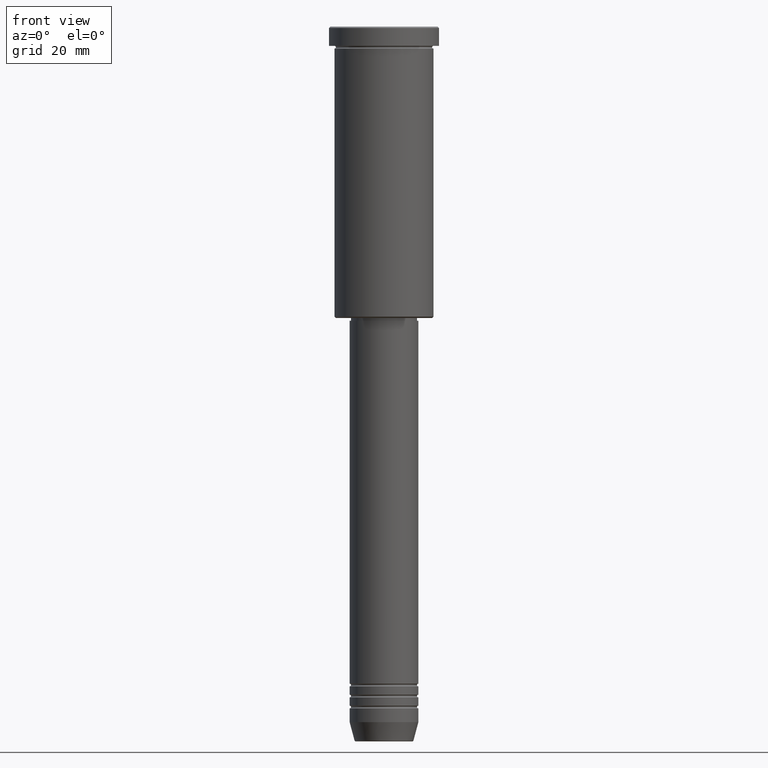
[diagram: clean part render]
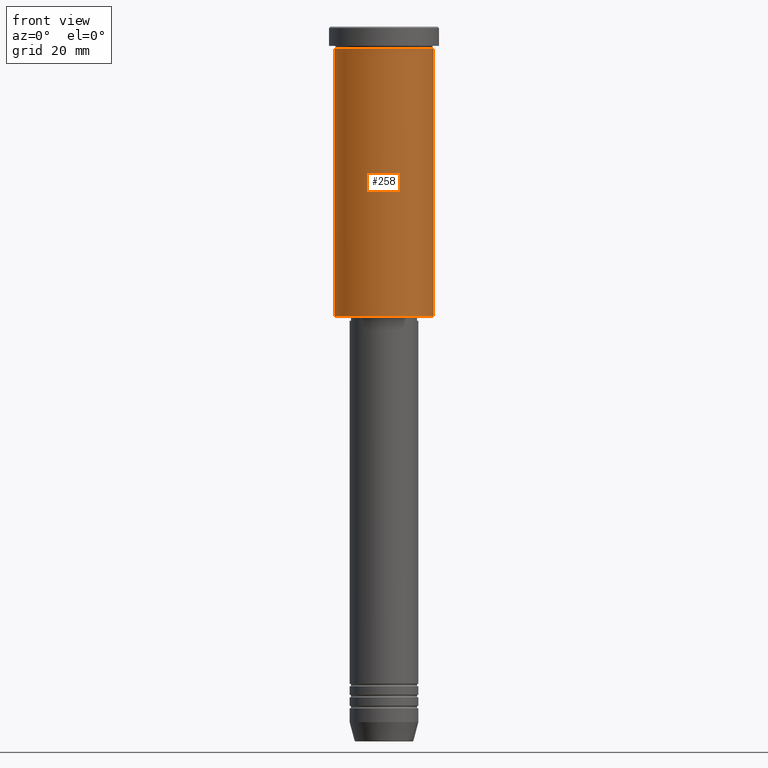
[diagram: same view with one face highlighted and labeled with its STEP entity id]
A machine part, front view. The second image highlights one B-rep face of the part: STEP entity #258.
In plain terms, the highlighted cylindrical surface (partial cylindrical patch) has radius 18 mm, axis along (-0, -0, 1).
Its self-contained STEP definition (entity closure, byte-faithful):
#102 = CARTESIAN_POINT ( 'NONE',  ( 0.000000000000000000, 0.000000000000000000, -7.999999999999996447 ) ) ;
#110 = EDGE_CURVE ( 'NONE', #961, #1106, #339, .T. ) ;
#128 = DIRECTION ( 'NONE',  ( 1.000000000000000000, 0.000000000000000000, 0.000000000000000000 ) ) ;
#156 = CARTESIAN_POINT ( 'NONE',  ( -18.00000000000000000, 2.204364238465235428E-15, 0.000000000000000000 ) ) ;
#159 = DIRECTION ( 'NONE',  ( -0.000000000000000000, -0.000000000000000000, 1.000000000000000000 ) ) ;
#189 = CARTESIAN_POINT ( 'NONE',  ( 0.000000000000000000, 0.000000000000000000, 0.000000000000000000 ) ) ;
#225 = AXIS2_PLACEMENT_3D ( 'NONE', #189, #461, #128 ) ;
#242 = DIRECTION ( 'NONE',  ( -1.000000000000000000, 0.000000000000000000, 0.000000000000000000 ) ) ;
#258 = ADVANCED_FACE ( 'NONE', ( #817 ), #278, .T. ) ;
#278 = CYLINDRICAL_SURFACE ( 'NONE', #225, 18.00000000000000000 ) ;
#288 = LINE ( 'NONE', #563, #505 ) ;
#301 = DIRECTION ( 'NONE',  ( 1.000000000000000000, 0.000000000000000000, 0.000000000000000000 ) ) ;
#339 = CIRCLE ( 'NONE', #1003, 18.00000000000000000 ) ;
#386 = VERTEX_POINT ( 'NONE', #865 ) ;
#422 = LINE ( 'NONE', #156, #1160 ) ;
#461 = DIRECTION ( 'NONE',  ( -0.000000000000000000, -0.000000000000000000, 1.000000000000000000 ) ) ;
#474 = VERTEX_POINT ( 'NONE', #497 ) ;
#496 = DIRECTION ( 'NONE',  ( -0.000000000000000000, -0.000000000000000000, 1.000000000000000000 ) ) ;
#497 = CARTESIAN_POINT ( 'NONE',  ( 18.00000000000000000, 0.000000000000000000, -7.999999999999996447 ) ) ;
#505 = VECTOR ( 'NONE', #568, 1000.000000000000000 ) ;
#563 = CARTESIAN_POINT ( 'NONE',  ( 18.00000000000000000, 0.000000000000000000, 0.000000000000000000 ) ) ;
#568 = DIRECTION ( 'NONE',  ( -0.000000000000000000, -0.000000000000000000, 1.000000000000000000 ) ) ;
#646 = ORIENTED_EDGE ( 'NONE', *, *, #1152, .T. ) ;
#722 = CARTESIAN_POINT ( 'NONE',  ( -18.00000000000000000, 2.204364238465235428E-15, -105.4999999999999716 ) ) ;
#736 = EDGE_CURVE ( 'NONE', #386, #474, #946, .T. ) ;
#744 = DIRECTION ( 'NONE',  ( -0.000000000000000000, -0.000000000000000000, 1.000000000000000000 ) ) ;
#817 = FACE_OUTER_BOUND ( 'NONE', #1163, .T. ) ;
#822 = EDGE_CURVE ( 'NONE', #961, #386, #422, .T. ) ;
#865 = CARTESIAN_POINT ( 'NONE',  ( -18.00000000000000000, 2.204364238465235428E-15, -7.999999999999996447 ) ) ;
#891 = AXIS2_PLACEMENT_3D ( 'NONE', #102, #744, #301 ) ;
#922 = CARTESIAN_POINT ( 'NONE',  ( 18.00000000000000000, 0.000000000000000000, -105.4999999999999716 ) ) ;
#946 = CIRCLE ( 'NONE', #891, 18.00000000000000000 ) ;
#961 = VERTEX_POINT ( 'NONE', #722 ) ;
#980 = CARTESIAN_POINT ( 'NONE',  ( 0.000000000000000000, 0.000000000000000000, -105.4999999999999716 ) ) ;
#1003 = AXIS2_PLACEMENT_3D ( 'NONE', #980, #159, #242 ) ;
#1007 = ORIENTED_EDGE ( 'NONE', *, *, #822, .F. ) ;
#1090 = ORIENTED_EDGE ( 'NONE', *, *, #110, .T. ) ;
#1106 = VERTEX_POINT ( 'NONE', #922 ) ;
#1152 = EDGE_CURVE ( 'NONE', #1106, #474, #288, .T. ) ;
#1160 = VECTOR ( 'NONE', #496, 1000.000000000000000 ) ;
#1163 = EDGE_LOOP ( 'NONE', ( #1007, #1090, #646, #1172 ) ) ;
#1172 = ORIENTED_EDGE ( 'NONE', *, *, #736, .F. ) ;